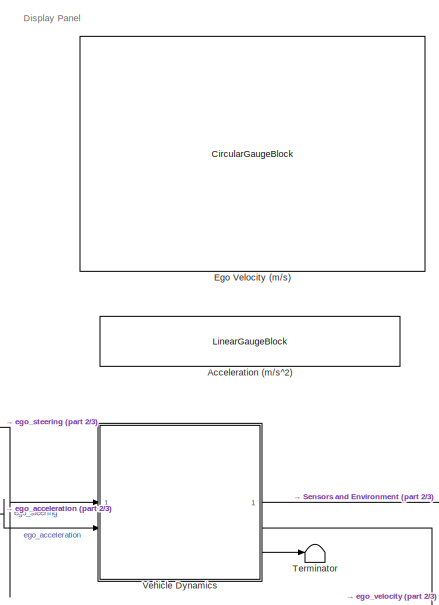
[diagram: root canvas - part 1/3, middle right region]
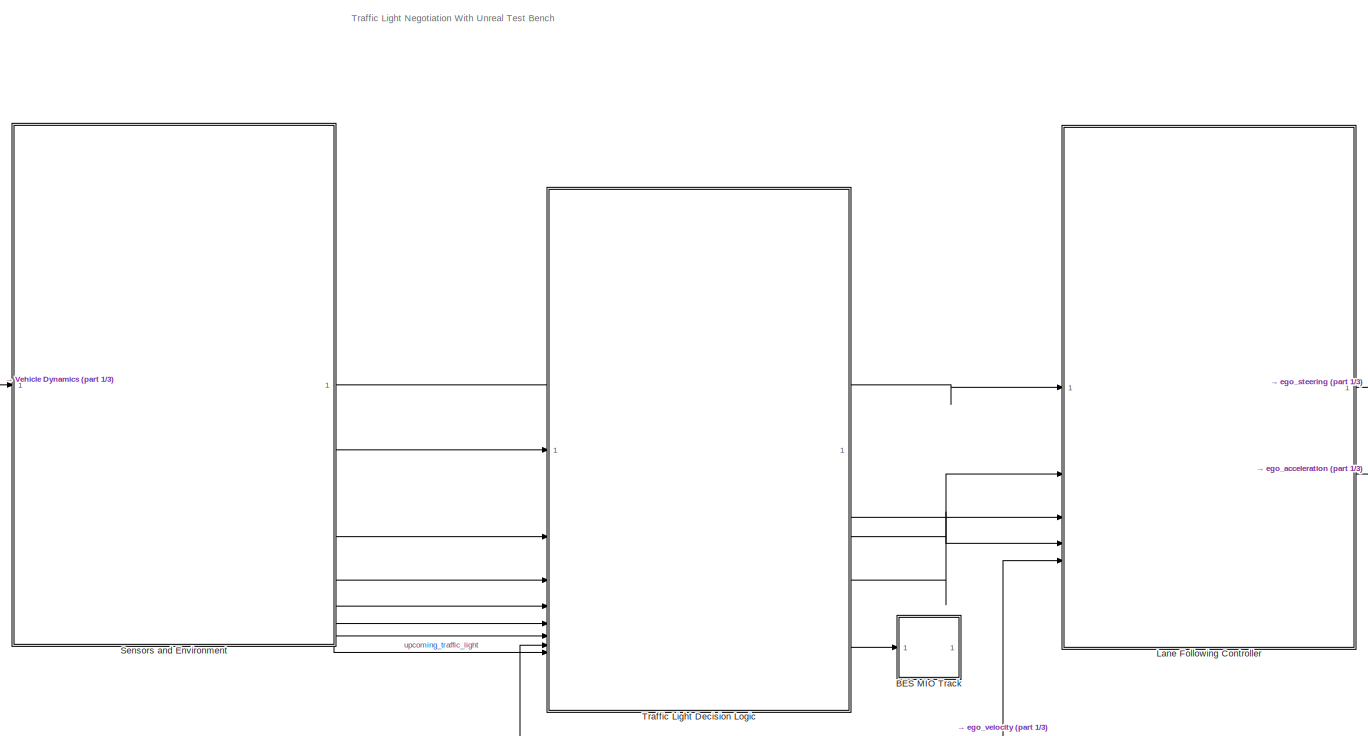
[diagram: root canvas - part 2/3, center side, full height]
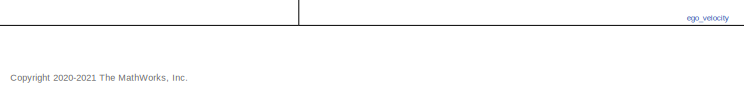
[diagram: root canvas - part 3/3, bottom center region]
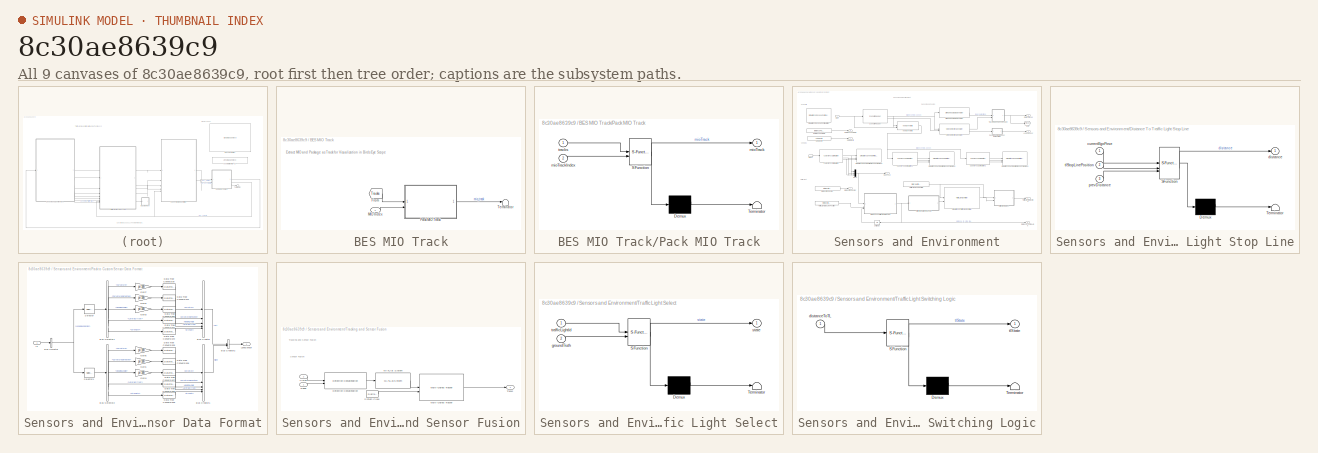
[diagram: thumbnail index - all 9 canvases of the model, root first then tree order]
MODEL slx_8c30ae8639c9
KIND model
CONFIG AbsTol = auto
CONFIG EnableMultiTasking = on
CONFIG FixedStep = 0.001
CONFIG MaxStep = auto
CONFIG MinStep = auto
CONFIG PostLoadFcn = helperSLTrafficLightNegotiationWithUnrealSetup
CONFIG RelTol = 1e-8
CONFIG SampleTimeConstraint = Unconstrained
CONFIG SolverName = VariableStepAuto
CONFIG StartTime = 0.0
CONFIG StopTime = scenario.StopTime
BLOCK [LinearGaugeBlock] Acceleration (m//s^2)
  LabelPosition = Hide
  ScaleMax = 6
  ScaleMin = -6
BLOCK [SubSystem] BES MIO Track
BLOCK [From] BES MIO Track/From
  GotoTag = Tracks
  TagVisibility = global
BLOCK [Inport] BES MIO Track/MIO Index
BLOCK [SubSystem] BES MIO Track/Pack MIO Track
  ErrorFcn = Stateflow.Translate.translate
  PermitHierarchicalResolution = ExplicitOnly
  SFBlockType = MATLAB Function
  TreatAsAtomicUnit = on
BLOCK [Demux] BES MIO Track/Pack MIO Track/ Demux 
  Outputs = 1
BLOCK [S-Function] BES MIO Track/Pack MIO Track/ SFunction 
  EnableBusSupport = off
  FunctionName = sf_sfun
  PortCounts = [2 2]
  SFcnIsStateOwnerBlock = off
  SFunctionDeploymentMode = off
  Tag = Stateflow S-Function 3
BLOCK [Terminator] BES MIO Track/Pack MIO Track/ Terminator 
BLOCK [Outport] BES MIO Track/Pack MIO Track/mioTrack
  VectorParamsAs1DForOutWhenUnconnected = off
BLOCK [Inport] BES MIO Track/Pack MIO Track/mioTrackIndex
  Port = 2
BLOCK [Inport] BES MIO Track/Pack MIO Track/tracks
BLOCK [Terminator] BES MIO Track/Terminator
BLOCK [CircularGaugeBlock] Ego Velocity (m//s)
  LabelPosition = Hide
  ScaleMax = 50
BLOCK [ModelReference] Lane Following Controller
  ModelNameDialog = LaneFollowingController.slx
  ModelReferenceVersion = 8.1
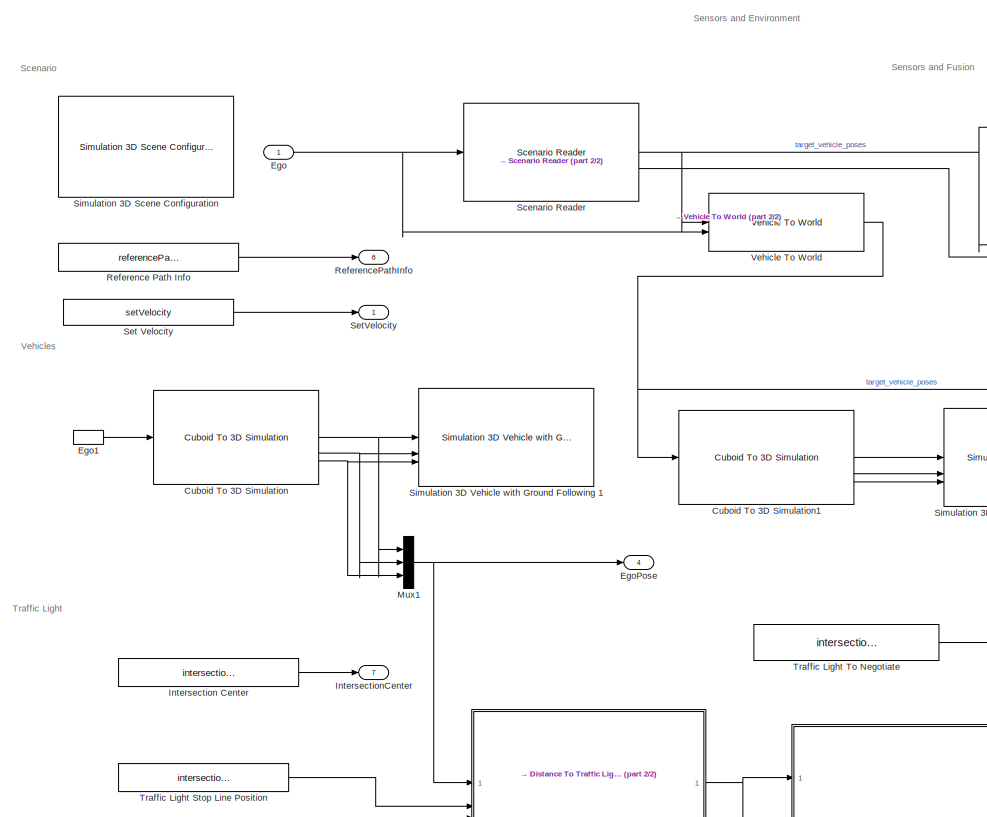
[diagram: Sensors and Environment - part 1/2, left side, full height]
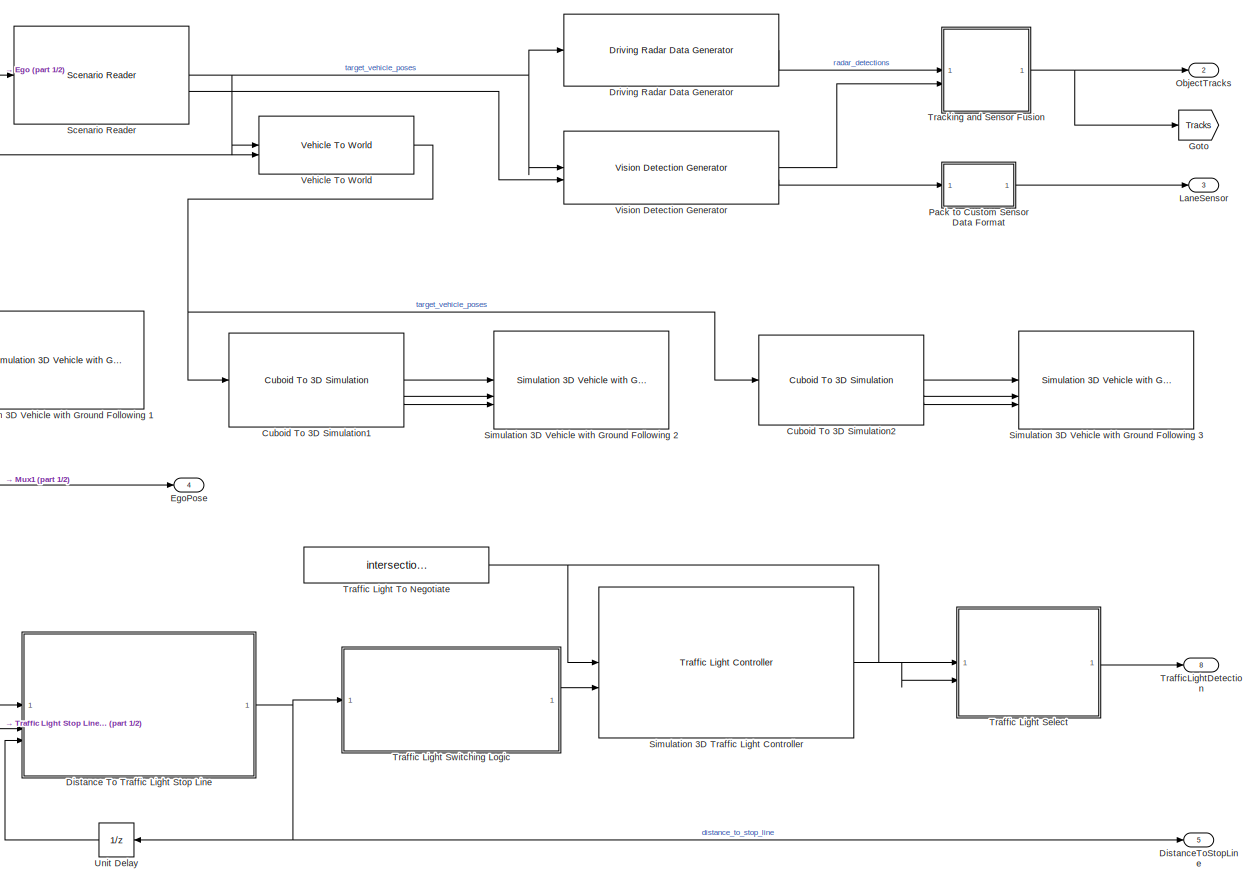
[diagram: Sensors and Environment - part 2/2, most of the canvas]
BLOCK [SubSystem] Sensors and Environment
BLOCK [Reference] Sensors and Environment/Cuboid To 3D Simulation  REF=drivingscenarioandsensors/Cuboid To 3D Simulation
  SourceBlock = drivingscenarioandsensors/Cuboid To 3D Simulation
  SourceType = driving.scenario.internal.CuboidTo3DSimulation
BLOCK [Reference] Sensors and Environment/Cuboid To 3D Simulation1  REF=drivingscenarioandsensors/Cuboid To 3D Simulation
  SourceBlock = drivingscenarioandsensors/Cuboid To 3D Simulation
  SourceType = driving.scenario.internal.CuboidTo3DSimulation
BLOCK [Reference] Sensors and Environment/Cuboid To 3D Simulation2  REF=drivingscenarioandsensors/Cuboid To 3D Simulation
  SourceBlock = drivingscenarioandsensors/Cuboid To 3D Simulation
  SourceType = driving.scenario.internal.CuboidTo3DSimulation
BLOCK [SubSystem] Sensors and Environment/Distance To Traffic Light Stop Line
  ErrorFcn = Stateflow.Translate.translate
  PermitHierarchicalResolution = ExplicitOnly
  SFBlockType = MATLAB Function
  TreatAsAtomicUnit = on
BLOCK [Demux] Sensors and Environment/Distance To Traffic Light Stop Line/ Demux 
  Outputs = 1
BLOCK [S-Function] Sensors and Environment/Distance To Traffic Light Stop Line/ SFunction 
  EnableBusSupport = off
  FunctionName = sf_sfun
  Parameters = minTLDist
  PortCounts = [3 2]
  SFcnIsStateOwnerBlock = off
  SFunctionDeploymentMode = off
  Tag = Stateflow S-Function 7
BLOCK [Terminator] Sensors and Environment/Distance To Traffic Light Stop Line/ Terminator 
BLOCK [Inport] Sensors and Environment/Distance To Traffic Light Stop Line/currentEgoPose
BLOCK [Outport] Sensors and Environment/Distance To Traffic Light Stop Line/distance
BLOCK [Inport] Sensors and Environment/Distance To Traffic Light Stop Line/prevDistance
  Port = 3
BLOCK [Inport] Sensors and Environment/Distance To Traffic Light Stop Line/tlStopLinePosition
  Port = 2
BLOCK [Outport] Sensors and Environment/DistanceToStopLine
  Port = 5
BLOCK [Reference] Sensors and Environment/Driving Radar Data Generator  REF=drivingscenarioandsensors/Driving Radar Data Generator
  SourceBlock = drivingscenarioandsensors/Driving Radar Data Generator
  SourceType = drivingRadarDataGenerator
BLOCK [Inport] Sensors and Environment/Ego
BLOCK [InportShadow] Sensors and Environment/Ego1
BLOCK [Outport] Sensors and Environment/EgoPose
  Port = 4
BLOCK [Goto] Sensors and Environment/Goto
  GotoTag = Tracks
  TagVisibility = global
BLOCK [Constant] Sensors and Environment/Intersection Center
  SampleTime = Ts
  Value = intersectionInfo.intersectionCenter
BLOCK [Outport] Sensors and Environment/IntersectionCenter
  Port = 7
BLOCK [Outport] Sensors and Environment/LaneSensor
  Port = 3
  VectorParamsAs1DForOutWhenUnconnected = off
BLOCK [Mux] Sensors and Environment/Mux1
  DisplayOption = bar
  Inputs = 3
BLOCK [Outport] Sensors and Environment/ObjectTracks
  Port = 2
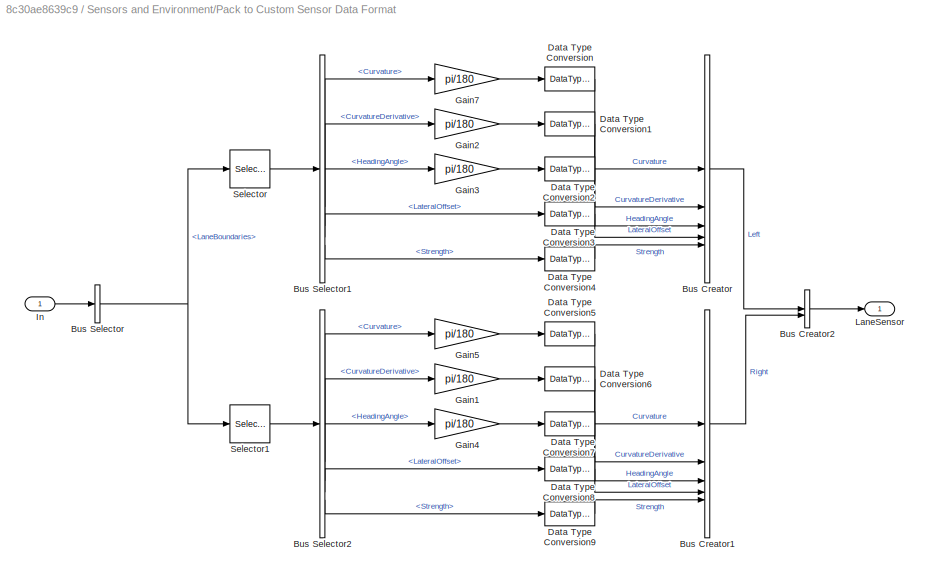
BLOCK [SubSystem] Sensors and Environment/Pack to Custom Sensor Data Format
BLOCK [BusCreator] Sensors and Environment/Pack to Custom Sensor Data Format/Bus Creator
  DisplayOption = bar
  InheritFromInputs = on
  Inputs = Curvature,CurvatureDerivative,HeadingAngle,LateralOffset,Strength
  OutDataTypeStr = Bus: LaneSensorBoundaries
BLOCK [BusCreator] Sensors and Environment/Pack to Custom Sensor Data Format/Bus Creator1
  DisplayOption = bar
  InheritFromInputs = on
  Inputs = Curvature,CurvatureDerivative,HeadingAngle,LateralOffset,Strength
  OutDataTypeStr = Bus: LaneSensorBoundaries
BLOCK [BusCreator] Sensors and Environment/Pack to Custom Sensor Data Format/Bus Creator2
  DisplayOption = bar
  InheritFromInputs = on
  Inputs = Left,Right
  OutDataTypeStr = Bus: LaneSensor
BLOCK [BusSelector] Sensors and Environment/Pack to Custom Sensor Data Format/Bus Selector
  OutputSignals = LaneBoundaries
BLOCK [BusSelector] Sensors and Environment/Pack to Custom Sensor Data Format/Bus Selector1
  OutputSignals = Curvature,CurvatureDerivative,HeadingAngle,LateralOffset,Strength
BLOCK [BusSelector] Sensors and Environment/Pack to Custom Sensor Data Format/Bus Selector2
  OutputSignals = Curvature,CurvatureDerivative,HeadingAngle,LateralOffset,Strength
BLOCK [DataTypeConversion] Sensors and Environment/Pack to Custom Sensor Data Format/Data Type Conversion
  RndMeth = Floor
  SaturateOnIntegerOverflow = off
BLOCK [DataTypeConversion] Sensors and Environment/Pack to Custom Sensor Data Format/Data Type Conversion1
  RndMeth = Floor
  SaturateOnIntegerOverflow = off
BLOCK [DataTypeConversion] Sensors and Environment/Pack to Custom Sensor Data Format/Data Type Conversion2
  RndMeth = Floor
  SaturateOnIntegerOverflow = off
BLOCK [DataTypeConversion] Sensors and Environment/Pack to Custom Sensor Data Format/Data Type Conversion3
  RndMeth = Floor
  SaturateOnIntegerOverflow = off
BLOCK [DataTypeConversion] Sensors and Environment/Pack to Custom Sensor Data Format/Data Type Conversion4
  RndMeth = Floor
  SaturateOnIntegerOverflow = off
BLOCK [DataTypeConversion] Sensors and Environment/Pack to Custom Sensor Data Format/Data Type Conversion5
  RndMeth = Floor
  SaturateOnIntegerOverflow = off
BLOCK [DataTypeConversion] Sensors and Environment/Pack to Custom Sensor Data Format/Data Type Conversion6
  RndMeth = Floor
  SaturateOnIntegerOverflow = off
BLOCK [DataTypeConversion] Sensors and Environment/Pack to Custom Sensor Data Format/Data Type Conversion7
  RndMeth = Floor
  SaturateOnIntegerOverflow = off
BLOCK [DataTypeConversion] Sensors and Environment/Pack to Custom Sensor Data Format/Data Type Conversion8
  RndMeth = Floor
  SaturateOnIntegerOverflow = off
BLOCK [DataTypeConversion] Sensors and Environment/Pack to Custom Sensor Data Format/Data Type Conversion9
  RndMeth = Floor
  SaturateOnIntegerOverflow = off
BLOCK [Gain] Sensors and Environment/Pack to Custom Sensor Data Format/Gain1
  Gain = pi/180
BLOCK [Gain] Sensors and Environment/Pack to Custom Sensor Data Format/Gain2
  Gain = pi/180
BLOCK [Gain] Sensors and Environment/Pack to Custom Sensor Data Format/Gain3
  Gain = pi/180
BLOCK [Gain] Sensors and Environment/Pack to Custom Sensor Data Format/Gain4
  Gain = pi/180
BLOCK [Gain] Sensors and Environment/Pack to Custom Sensor Data Format/Gain5
  Gain = pi/180
BLOCK [Gain] Sensors and Environment/Pack to Custom Sensor Data Format/Gain7
  Gain = pi/180
BLOCK [Inport] Sensors and Environment/Pack to Custom Sensor Data Format/In
BLOCK [Outport] Sensors and Environment/Pack to Custom Sensor Data Format/LaneSensor
  VectorParamsAs1DForOutWhenUnconnected = off
BLOCK [Selector] Sensors and Environment/Pack to Custom Sensor Data Format/Selector
  IndexOptions = Index vector (dialog)
  Indices = 1
  InputPortWidth = 2
  OutputSizes = 1
BLOCK [Selector] Sensors and Environment/Pack to Custom Sensor Data Format/Selector1
  IndexOptions = Index vector (dialog)
  Indices = 2
  InputPortWidth = 2
  OutputSizes = 1
BLOCK [Constant] Sensors and Environment/Reference Path Info
  OutDataTypeStr = Bus: ReferencePathInfo
  SampleTime = Ts
  Value = referencePathInfo
BLOCK [Outport] Sensors and Environment/ReferencePathInfo
  Port = 6
BLOCK [Reference] Sensors and Environment/Scenario Reader  REF=drivingscenarioandsensors/Scenario Reader
  SourceBlock = drivingscenarioandsensors/Scenario Reader
  SourceType = driving.scenario.internal.ScenarioReader
BLOCK [Constant] Sensors and Environment/Set Velocity
  Value = setVelocity
BLOCK [Outport] Sensors and Environment/SetVelocity
BLOCK [Reference] Sensors and Environment/Simulation 3D Scene Configuration  REF=sim3dlib/Simulation 3D Scene Configuration
  AttributesFormatString = SceneDesc = %<SceneDesc>
  LibrarySourceBlock = drivingsim3d/Simulation 3D Scene Configuration
  Priority = 0
  SourceBlock = sim3dlib/Simulation 3D Scene Configuration
  SourceType = Simulation 3D Scene Configuration
BLOCK [Reference] Sensors and Environment/Simulation 3D Traffic Light Controller  REF=helperTrafficLightControllerLib/Traffic Light Controller
  Priority = -1
  SourceBlock = helperTrafficLightControllerLib/Traffic Light Controller
  SourceType = Traffic Light Controller
BLOCK [Reference] Sensors and Environment/Simulation 3D Vehicle with Ground Following 1  REF=sim3dautolib/Simulation 3D Vehicle with Ground Following
  AttributesFormatString = --------------------------------------\nActorName = %<ActorName>\nPassVehMesh = %<PassVehMesh>\nVehColor = %<VehColor>
  LibrarySourceBlock = drivingsim3d/Simulation 3D Vehicle with Ground Following
  Priority = -1
  SourceBlock = sim3dautolib/Simulation 3D Vehicle with Ground Following
  SourceType = Simulation 3D Vehicle with Ground Following
BLOCK [Reference] Sensors and Environment/Simulation 3D Vehicle with Ground Following 2  REF=sim3dautolib/Simulation 3D Vehicle with Ground Following
  AttributesFormatString = --------------------------------------\nActorName = %<ActorName>\nPassVehMesh = %<PassVehMesh>\nVehColor = %<VehColor>
  LibrarySourceBlock = drivingsim3d/Simulation 3D Vehicle with Ground Following
  Priority = -1
  SourceBlock = sim3dautolib/Simulation 3D Vehicle with Ground Following
  SourceType = Simulation 3D Vehicle with Ground Following
BLOCK [Reference] Sensors and Environment/Simulation 3D Vehicle with Ground Following 3  REF=sim3dautolib/Simulation 3D Vehicle with Ground Following
  AttributesFormatString = --------------------------------------\nActorName = %<ActorName>\nPassVehMesh = %<PassVehMesh>\nVehColor = %<VehColor>
  LibrarySourceBlock = drivingsim3d/Simulation 3D Vehicle with Ground Following
  Priority = -1
  SourceBlock = sim3dautolib/Simulation 3D Vehicle with Ground Following
  SourceType = Simulation 3D Vehicle with Ground Following
BLOCK [SubSystem] Sensors and Environment/Tracking and Sensor Fusion
  RTWFileNameOpts = Use function name
  RTWSystemCode = Reusable function
  TreatAsAtomicUnit = on
BLOCK [Reference] Sensors and Environment/Tracking and Sensor Fusion/Detection Concatenation  REF=trackingutilitieslib/Detection Concatenation
  SourceBlock = trackingutilitieslib/Detection Concatenation
  SourceType = matlabshared.tracking.internal.DetectionConcatenation
BLOCK [MATLABSystem] Sensors and Environment/Tracking and Sensor Fusion/MATLAB System
  BusName = BusVehicleSizeDetections
  BusNameSource = Auto
  MaskDisplay = disp('helperVehicleSize');\nport_label('input',1,'In');\nport_label('output',1,'Out');
  MaskType = helperVehicleSize
  SimulateUsing = Interpreted execution
  System = helperVehicleSize
  VehicleSize = vehicleLength
BLOCK [Reference] Sensors and Environment/Tracking and Sensor Fusion/Multi-Object Tracker  REF=drivinglib/Multi-Object Tracker
  SourceBlock = drivinglib/Multi-Object Tracker
  SourceType = multiObjectTracker
BLOCK [Inport] Sensors and Environment/Tracking and Sensor Fusion/Radar
  BusOutputAsStruct = on
  OutDataTypeStr = Bus: BusRadar
  PortDimensions = [1 1]
BLOCK [DigitalClock] Sensors and Environment/Tracking and Sensor Fusion/System Clock
  SampleTime = Ts
BLOCK [Outport] Sensors and Environment/Tracking and Sensor Fusion/Tracks
  BusOutputAsStruct = on
  OutDataTypeStr = Bus:BusMultiObjectTracker1
  PortDimensions = [1 1]
  SamplingMode = Sample based
  SignalType = real
  VectorParamsAs1DForOutWhenUnconnected = off
BLOCK [Inport] Sensors and Environment/Tracking and Sensor Fusion/Vision
  BusOutputAsStruct = on
  OutDataTypeStr = Bus: BusVision
  Port = 2
  PortDimensions = [1 1]
BLOCK [SubSystem] Sensors and Environment/Traffic Light Select
  ErrorFcn = Stateflow.Translate.translate
  PermitHierarchicalResolution = ExplicitOnly
  SFBlockType = MATLAB Function
  TreatAsAtomicUnit = on
BLOCK [Demux] Sensors and Environment/Traffic Light Select/ Demux 
  Outputs = 1
BLOCK [S-Function] Sensors and Environment/Traffic Light Select/ SFunction 
  EnableBusSupport = off
  FunctionName = sf_sfun
  PortCounts = [2 2]
  SFcnIsStateOwnerBlock = off
  SFunctionDeploymentMode = off
  Tag = Stateflow S-Function 2
BLOCK [Terminator] Sensors and Environment/Traffic Light Select/ Terminator 
BLOCK [Inport] Sensors and Environment/Traffic Light Select/groundTruth
  Port = 2
BLOCK [Outport] Sensors and Environment/Traffic Light Select/state
BLOCK [Inport] Sensors and Environment/Traffic Light Select/trafficLightId
BLOCK [Constant] Sensors and Environment/Traffic Light Stop Line Position
  OutDataTypeStr = double
  Value = intersectionInfo.tlStopLinePosition
BLOCK [SubSystem] Sensors and Environment/Traffic Light Switching Logic
  ErrorFcn = Stateflow.Translate.translate
  PermitHierarchicalResolution = ExplicitOnly
  SFBlockType = Chart
  SystemSampleTime = Ts
  TreatAsAtomicUnit = on
BLOCK [Demux] Sensors and Environment/Traffic Light Switching Logic/ Demux 
  Outputs = 1
BLOCK [S-Function] Sensors and Environment/Traffic Light Switching Logic/ SFunction 
  EnableBusSupport = off
  FunctionName = sf_sfun
  Parameters = tlConfig
  PortCounts = [1 2]
  SFcnIsStateOwnerBlock = off
  SFunctionDeploymentMode = off
  Tag = Stateflow S-Function 9
BLOCK [Terminator] Sensors and Environment/Traffic Light Switching Logic/ Terminator 
BLOCK [Inport] Sensors and Environment/Traffic Light Switching Logic/distanceToTL
BLOCK [Outport] Sensors and Environment/Traffic Light Switching Logic/tlState
BLOCK [Constant] Sensors and Environment/Traffic Light To Negotiate
  Value = intersectionInfo.trafficLightToNegotiate
BLOCK [Outport] Sensors and Environment/TrafficLightDetection
  Port = 8
  SampleTime = Ts
BLOCK [UnitDelay] Sensors and Environment/Unit Delay
  HasFrameUpgradeWarning = on
  InitialCondition = 100
  NameLocation = top
  SampleTime = -1
BLOCK [Reference] Sensors and Environment/Vehicle To World  REF=drivingscenarioandsensors/Vehicle To World
  SourceBlock = drivingscenarioandsensors/Vehicle To World
  SourceType = driving.scenario.internal.VehicleToWorld
BLOCK [Reference] Sensors and Environment/Vision Detection Generator  REF=drivingscenarioandsensors/Vision Detection Generator
  SourceBlock = drivingscenarioandsensors/Vision Detection Generator
  SourceType = visionDetectionGenerator
BLOCK [Terminator] Terminator
BLOCK [ModelReference] Traffic Light Decision Logic
  ModelNameDialog = TrafficLightDecisionLogic
  ModelReferenceVersion = 7.1
  PortSchema = {"entries":[{"content":{"sides":[{"content":{"connectorIds":["In1","In2","In3","In4","In5","In6","In8","In7"]},"type":"ConnectorPlacement.EquallySpacedRectSide","uuid":"80441088-7f88-498e-bd57-56a9591db5ab"},{"content":{"connectorIds":["Out3","Out1","Out2","Out4"],"side":"RIGHT"},"type":"ConnectorPlacement.EquallySpacedRectSide","uuid":"71bac071-b53b-4fb3-8fe7-17db6e81a6fe"},{"content":{"connector...<+447ch>
BLOCK [SubSystem] Vehicle Dynamics
  ReferencedSubsystem = BicycleWithForceInput
ANNOTATION (root): <copyright redacted>
ANNOTATION (root): Traffic Light Negotiation With Unreal Test Bench
ANNOTATION (root): Display Panel
ANNOTATION BES MIO Track: Extract MIO and Package as Track for Visualization in Birds Eye Scope
ANNOTATION Sensors and Environment: Sensors and Environment
ANNOTATION Sensors and Environment: Scenario
ANNOTATION Sensors and Environment: Sensors and Fusion
ANNOTATION Sensors and Environment: Traffic Light
ANNOTATION Sensors and Environment: Vehicles
ANNOTATION Sensors and Environment/Tracking and Sensor Fusion: Tracking and Sensor Fusion
ANNOTATION Sensors and Environment/Tracking and Sensor Fusion: Sensor Fusion
LINE BES MIO Track/From:1 -> BES MIO Track/Pack MIO Track:1
LINE BES MIO Track/MIO Index:1 -> BES MIO Track/Pack MIO Track:2
LINE BES MIO Track/Pack MIO Track:1 -> BES MIO Track/Terminator:1
LINE Lane Following Controller:1 -> Vehicle Dynamics:1
LINE Lane Following Controller:2 -> Vehicle Dynamics:2
LINE Sensors and Environment/Cuboid To 3D Simulation1:1 -> Sensors and Environment/Simulation 3D Vehicle with Ground Following 2:1
LINE Sensors and Environment/Cuboid To 3D Simulation1:2 -> Sensors and Environment/Simulation 3D Vehicle with Ground Following 2:2
LINE Sensors and Environment/Cuboid To 3D Simulation1:3 -> Sensors and Environment/Simulation 3D Vehicle with Ground Following 2:3
LINE Sensors and Environment/Cuboid To 3D Simulation2:1 -> Sensors and Environment/Simulation 3D Vehicle with Ground Following 3:1
LINE Sensors and Environment/Cuboid To 3D Simulation2:2 -> Sensors and Environment/Simulation 3D Vehicle with Ground Following 3:2
LINE Sensors and Environment/Cuboid To 3D Simulation2:3 -> Sensors and Environment/Simulation 3D Vehicle with Ground Following 3:3
NET Sensors and Environment/Cuboid To 3D Simulation:1 -> Sensors and Environment/Mux1:1, Sensors and Environment/Simulation 3D Vehicle with Ground Following 1:1
NET Sensors and Environment/Cuboid To 3D Simulation:2 -> Sensors and Environment/Mux1:2, Sensors and Environment/Simulation 3D Vehicle with Ground Following 1:2
NET Sensors and Environment/Cuboid To 3D Simulation:3 -> Sensors and Environment/Mux1:3, Sensors and Environment/Simulation 3D Vehicle with Ground Following 1:3
NET Sensors and Environment/Distance To Traffic Light Stop Line:1 -> Sensors and Environment/DistanceToStopLine:1, Sensors and Environment/Traffic Light Switching Logic:1, Sensors and Environment/Unit Delay:1
LINE Sensors and Environment/Driving Radar Data Generator:1 -> Sensors and Environment/Tracking and Sensor Fusion:1
LINE Sensors and Environment/Ego1:1 -> Sensors and Environment/Cuboid To 3D Simulation:1
NET Sensors and Environment/Ego:1 -> Sensors and Environment/Scenario Reader:1, Sensors and Environment/Vehicle To World:2
LINE Sensors and Environment/Intersection Center:1 -> Sensors and Environment/IntersectionCenter:1
NET Sensors and Environment/Mux1:1 -> Sensors and Environment/Distance To Traffic Light Stop Line:1, Sensors and Environment/EgoPose:1
LINE Sensors and Environment/Pack to Custom Sensor Data Format/Bus Creator1:1 -> Sensors and Environment/Pack to Custom Sensor Data Format/Bus Creator2:2
LINE Sensors and Environment/Pack to Custom Sensor Data Format/Bus Creator2:1 -> Sensors and Environment/Pack to Custom Sensor Data Format/LaneSensor:1
LINE Sensors and Environment/Pack to Custom Sensor Data Format/Bus Creator:1 -> Sensors and Environment/Pack to Custom Sensor Data Format/Bus Creator2:1
LINE Sensors and Environment/Pack to Custom Sensor Data Format/Bus Selector1:1 -> Sensors and Environment/Pack to Custom Sensor Data Format/Gain7:1
LINE Sensors and Environment/Pack to Custom Sensor Data Format/Bus Selector1:2 -> Sensors and Environment/Pack to Custom Sensor Data Format/Gain2:1
LINE Sensors and Environment/Pack to Custom Sensor Data Format/Bus Selector1:3 -> Sensors and Environment/Pack to Custom Sensor Data Format/Gain3:1
LINE Sensors and Environment/Pack to Custom Sensor Data Format/Bus Selector1:4 -> Sensors and Environment/Pack to Custom Sensor Data Format/Data Type Conversion3:1
LINE Sensors and Environment/Pack to Custom Sensor Data Format/Bus Selector1:5 -> Sensors and Environment/Pack to Custom Sensor Data Format/Data Type Conversion4:1
LINE Sensors and Environment/Pack to Custom Sensor Data Format/Bus Selector2:1 -> Sensors and Environment/Pack to Custom Sensor Data Format/Gain5:1
LINE Sensors and Environment/Pack to Custom Sensor Data Format/Bus Selector2:2 -> Sensors and Environment/Pack to Custom Sensor Data Format/Gain1:1
LINE Sensors and Environment/Pack to Custom Sensor Data Format/Bus Selector2:3 -> Sensors and Environment/Pack to Custom Sensor Data Format/Gain4:1
LINE Sensors and Environment/Pack to Custom Sensor Data Format/Bus Selector2:4 -> Sensors and Environment/Pack to Custom Sensor Data Format/Data Type Conversion8:1
LINE Sensors and Environment/Pack to Custom Sensor Data Format/Bus Selector2:5 -> Sensors and Environment/Pack to Custom Sensor Data Format/Data Type Conversion9:1
NET Sensors and Environment/Pack to Custom Sensor Data Format/Bus Selector:1 -> Sensors and Environment/Pack to Custom Sensor Data Format/Selector1:1, Sensors and Environment/Pack to Custom Sensor Data Format/Selector:1
LINE Sensors and Environment/Pack to Custom Sensor Data Format/Data Type Conversion1:1 -> Sensors and Environment/Pack to Custom Sensor Data Format/Bus Creator:2
LINE Sensors and Environment/Pack to Custom Sensor Data Format/Data Type Conversion2:1 -> Sensors and Environment/Pack to Custom Sensor Data Format/Bus Creator:3
LINE Sensors and Environment/Pack to Custom Sensor Data Format/Data Type Conversion3:1 -> Sensors and Environment/Pack to Custom Sensor Data Format/Bus Creator:4
LINE Sensors and Environment/Pack to Custom Sensor Data Format/Data Type Conversion4:1 -> Sensors and Environment/Pack to Custom Sensor Data Format/Bus Creator:5
LINE Sensors and Environment/Pack to Custom Sensor Data Format/Data Type Conversion5:1 -> Sensors and Environment/Pack to Custom Sensor Data Format/Bus Creator1:1
LINE Sensors and Environment/Pack to Custom Sensor Data Format/Data Type Conversion6:1 -> Sensors and Environment/Pack to Custom Sensor Data Format/Bus Creator1:2
LINE Sensors and Environment/Pack to Custom Sensor Data Format/Data Type Conversion7:1 -> Sensors and Environment/Pack to Custom Sensor Data Format/Bus Creator1:3
LINE Sensors and Environment/Pack to Custom Sensor Data Format/Data Type Conversion8:1 -> Sensors and Environment/Pack to Custom Sensor Data Format/Bus Creator1:4
LINE Sensors and Environment/Pack to Custom Sensor Data Format/Data Type Conversion9:1 -> Sensors and Environment/Pack to Custom Sensor Data Format/Bus Creator1:5
LINE Sensors and Environment/Pack to Custom Sensor Data Format/Data Type Conversion:1 -> Sensors and Environment/Pack to Custom Sensor Data Format/Bus Creator:1
LINE Sensors and Environment/Pack to Custom Sensor Data Format/Gain1:1 -> Sensors and Environment/Pack to Custom Sensor Data Format/Data Type Conversion6:1
LINE Sensors and Environment/Pack to Custom Sensor Data Format/Gain2:1 -> Sensors and Environment/Pack to Custom Sensor Data Format/Data Type Conversion1:1
LINE Sensors and Environment/Pack to Custom Sensor Data Format/Gain3:1 -> Sensors and Environment/Pack to Custom Sensor Data Format/Data Type Conversion2:1
LINE Sensors and Environment/Pack to Custom Sensor Data Format/Gain4:1 -> Sensors and Environment/Pack to Custom Sensor Data Format/Data Type Conversion7:1
LINE Sensors and Environment/Pack to Custom Sensor Data Format/Gain5:1 -> Sensors and Environment/Pack to Custom Sensor Data Format/Data Type Conversion5:1
LINE Sensors and Environment/Pack to Custom Sensor Data Format/Gain7:1 -> Sensors and Environment/Pack to Custom Sensor Data Format/Data Type Conversion:1
LINE Sensors and Environment/Pack to Custom Sensor Data Format/In:1 -> Sensors and Environment/Pack to Custom Sensor Data Format/Bus Selector:1
LINE Sensors and Environment/Pack to Custom Sensor Data Format/Selector1:1 -> Sensors and Environment/Pack to Custom Sensor Data Format/Bus Selector2:1
LINE Sensors and Environment/Pack to Custom Sensor Data Format/Selector:1 -> Sensors and Environment/Pack to Custom Sensor Data Format/Bus Selector1:1
LINE Sensors and Environment/Pack to Custom Sensor Data Format:1 -> Sensors and Environment/LaneSensor:1
LINE Sensors and Environment/Reference Path Info:1 -> Sensors and Environment/ReferencePathInfo:1
NET Sensors and Environment/Scenario Reader:1 -> Sensors and Environment/Driving Radar Data Generator:1, Sensors and Environment/Vehicle To World:1, Sensors and Environment/Vision Detection Generator:1
LINE Sensors and Environment/Scenario Reader:2 -> Sensors and Environment/Vision Detection Generator:2
LINE Sensors and Environment/Set Velocity:1 -> Sensors and Environment/SetVelocity:1
LINE Sensors and Environment/Simulation 3D Traffic Light Controller:1 -> Sensors and Environment/Traffic Light Select:2
LINE Sensors and Environment/Tracking and Sensor Fusion/Detection Concatenation:1 -> Sensors and Environment/Tracking and Sensor Fusion/MATLAB System:1
LINE Sensors and Environment/Tracking and Sensor Fusion/MATLAB System:1 -> Sensors and Environment/Tracking and Sensor Fusion/Multi-Object Tracker:1
LINE Sensors and Environment/Tracking and Sensor Fusion/Multi-Object Tracker:1 -> Sensors and Environment/Tracking and Sensor Fusion/Tracks:1
LINE Sensors and Environment/Tracking and Sensor Fusion/Radar:1 -> Sensors and Environment/Tracking and Sensor Fusion/Detection Concatenation:2
LINE Sensors and Environment/Tracking and Sensor Fusion/System Clock:1 -> Sensors and Environment/Tracking and Sensor Fusion/Multi-Object Tracker:2
LINE Sensors and Environment/Tracking and Sensor Fusion/Vision:1 -> Sensors and Environment/Tracking and Sensor Fusion/Detection Concatenation:1
NET Sensors and Environment/Tracking and Sensor Fusion:1 -> Sensors and Environment/Goto:1, Sensors and Environment/ObjectTracks:1
LINE Sensors and Environment/Traffic Light Select:1 -> Sensors and Environment/TrafficLightDetection:1
LINE Sensors and Environment/Traffic Light Stop Line Position:1 -> Sensors and Environment/Distance To Traffic Light Stop Line:2
LINE Sensors and Environment/Traffic Light Switching Logic:1 -> Sensors and Environment/Simulation 3D Traffic Light Controller:2
NET Sensors and Environment/Traffic Light To Negotiate:1 -> Sensors and Environment/Simulation 3D Traffic Light Controller:1, Sensors and Environment/Traffic Light Select:1
LINE Sensors and Environment/Unit Delay:1 -> Sensors and Environment/Distance To Traffic Light Stop Line:3
NET Sensors and Environment/Vehicle To World:1 -> Sensors and Environment/Cuboid To 3D Simulation1:1, Sensors and Environment/Cuboid To 3D Simulation2:1
LINE Sensors and Environment/Vision Detection Generator:1 -> Sensors and Environment/Tracking and Sensor Fusion:2
LINE Sensors and Environment/Vision Detection Generator:2 -> Sensors and Environment/Pack to Custom Sensor Data Format:1
LINE Sensors and Environment:1 -> Lane Following Controller:1
LINE Sensors and Environment:2 -> Traffic Light Decision Logic:1
LINE Sensors and Environment:3 -> Traffic Light Decision Logic:2
LINE Sensors and Environment:4 -> Traffic Light Decision Logic:3
LINE Sensors and Environment:5 -> Traffic Light Decision Logic:4
LINE Sensors and Environment:6 -> Traffic Light Decision Logic:5
LINE Sensors and Environment:7 -> Traffic Light Decision Logic:6
LINE Sensors and Environment:8 -> Traffic Light Decision Logic:8
LINE Traffic Light Decision Logic:1 -> Lane Following Controller:3
LINE Traffic Light Decision Logic:2 -> Lane Following Controller:4
LINE Traffic Light Decision Logic:3 -> Lane Following Controller:2
LINE Traffic Light Decision Logic:4 -> BES MIO Track:1
LINE Vehicle Dynamics:1 -> Sensors and Environment:1
NET Vehicle Dynamics:2 -> Lane Following Controller:5, Traffic Light Decision Logic:7
LINE Vehicle Dynamics:3 -> Terminator:1
note: NET lines group one-source signal fan-out (src -> all destinations, sorted); 1:1 wires keep LINE
CHART Sensors and Environment/Traffic Light Select states=1 transitions=1
  STATE_LABEL 'eML_blk_kernel()'
  STATE_LABEL 'SCRIPT:\nfunction state   = trafficLightSelect(trafficLightId, groundTruth)\n%trafficLightSelect selects the traffic light that is under the control of\n%ego vehicle and outputs its state.\n\n% There are 30 traffic lights in US City Block scene. The valid\n% traffic light ID will be in between 1 and 30.\nif(trafficLightId >=1 && trafficLightId <= 30)\n    % Get the upcomingTrafficLight state from the grou...<+218ch>'
CHART BES MIO Track/Pack MIO Track states=1 transitions=1
  STATE_LABEL 'eML_blk_kernel()'
  STATE_LABEL 'SCRIPT:\nfunction mioTrack = fcn(tracks, mioTrackIndex)\n% Extract MIO track and package for visualization in Birds Eye Scope\n\nmioTrack = tracks;\n\nif mioTrackIndex > 0\n    % First track represents MIO\n    mioTrack.NumTracks = 1;\n    mioTrack.Tracks(1) = tracks.Tracks(mioTrackIndex);\nelse\n    % No valid MIO track\n    mioTrack.NumTracks = 0;\nend\n'
CHART Sensors and Environment/Distance To Traffic Light Stop Line states=1 transitions=1
  STATE_LABEL 'eML_blk_kernel()'
  STATE_LABEL 'SCRIPT:\nfunction distance   = distanceToTrafficLight(currentEgoPose, tlStopLinePosition, prevDistance, minTLDist)\n\n%distanceToTrafficLight Compute distance to upcoming traffic light.\n\ndistance = ...\n    helperSLComputeDistanceToTrafficLight(tlStopLinePosition, ...\n    currentEgoPose, prevDistance, minTLDist);\n\n'
CHART Sensors and Environment/Traffic Light Switching Logic states=4 transitions=13
  STATE_LABEL 'ENTER\nentry:\ntlState =  tlConfig.initialState;\n'
  STATE_LABEL 'GREEN_STATE\nentry:\ntlState = Green;\n'
  STATE_LABEL 'YELLOW_STATE\nentry:\ntlState = Yellow;\n'
  STATE_LABEL 'RED_STATE\nentry:\ntlState = Red;\n'
CHART  states=0 transitions=0
CHART  states=0 transitions=0
CHART  states=0 transitions=0
CHART  states=0 transitions=0
